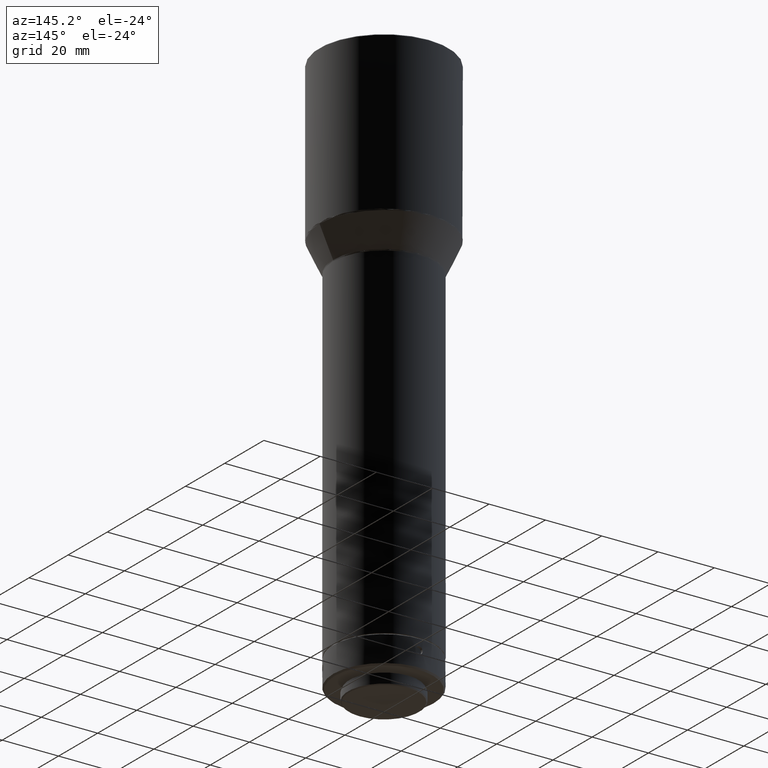
[diagram: clean part render]
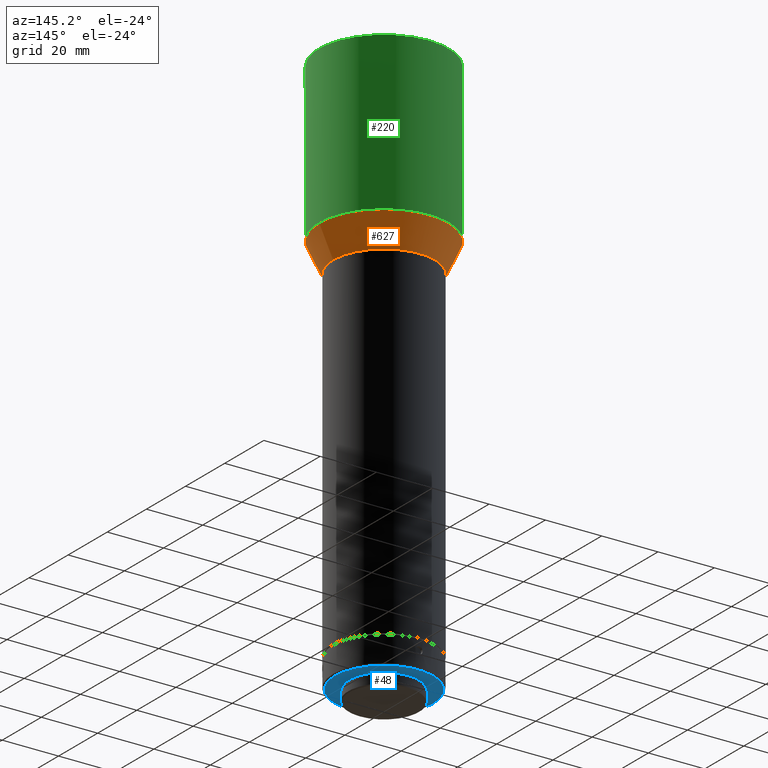
[diagram: same view with three faces highlighted in distinct colors, each labeled with its STEP entity id]
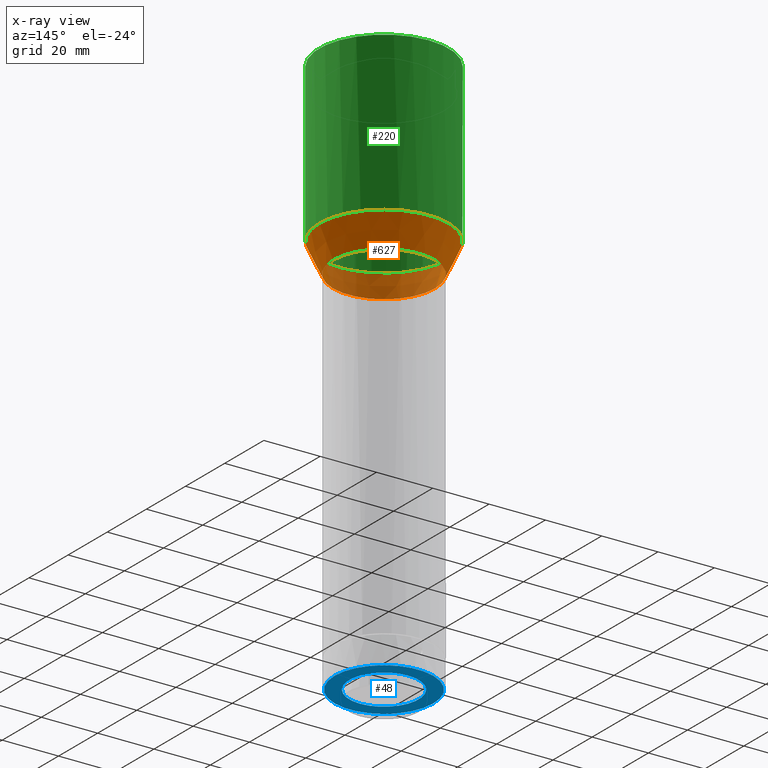
[diagram: x-ray of the same camera — body ghosted, the three highlighted faces saturated]
A machine part, auxiliary view with three faces highlighted in distinct colors.
The next image is the same camera in x-ray (body ghosted, the three faces saturated) — at least one of them is partly hidden behind the body in this view.
Their STEP definitions:

[orange] entity #627 — the highlighted conical surface has half-angle 25 deg.
#63 = CIRCLE ( 'NONE', #765, 18.09369221296335795 ) ;
#74 = ORIENTED_EDGE ( 'NONE', *, *, #787, .T. ) ;
#93 = FACE_OUTER_BOUND ( 'NONE', #377, .T. ) ;
#96 = DIRECTION ( 'NONE',  ( 3.670542878311740413E-31, -2.423400215667809268E-15, 1.000000000000000000 ) ) ;
#101 = CARTESIAN_POINT ( 'NONE',  ( 18.09369221296336505, -1.718642054122675722E-15, -633.5216110034501753 ) ) ;
#128 = CIRCLE ( 'NONE', #831, 22.90630778703664205 ) ;
#155 = DIRECTION ( 'NONE',  ( -4.314083075427408311E-32, -2.379644031336606723E-17, -1.000000000000000000 ) ) ;
#163 = DIRECTION ( 'NONE',  ( 4.314083075427408311E-32, 2.379644031336606723E-17, 1.000000000000000000 ) ) ;
#165 = DIRECTION ( 'NONE',  ( 0.000000000000000000, -1.000000000000000000, -4.846800431335618536E-15 ) ) ;
#167 = VERTEX_POINT ( 'NONE', #435 ) ;
#277 = ORIENTED_EDGE ( 'NONE', *, *, #849, .T. ) ;
#298 = FACE_BOUND ( 'NONE', #512, .T. ) ;
#348 = CARTESIAN_POINT ( 'NONE',  ( 8.018944991708157582E-15, -1.718642054122675525E-15, -633.5216110034501753 ) ) ;
#363 = CARTESIAN_POINT ( 'NONE',  ( 8.018944991708157582E-15, -1.473046432312095103E-15, -623.2009235990976777 ) ) ;
#377 = EDGE_LOOP ( 'NONE', ( #277 ) ) ;
#430 = DIRECTION ( 'NONE',  ( 1.000000000000000000, -1.064420639921900070E-32, 0.000000000000000000 ) ) ;
#435 = CARTESIAN_POINT ( 'NONE',  ( 22.90630778703664916, -1.473046432312093328E-15, -623.2009235990976777 ) ) ;
#512 = EDGE_LOOP ( 'NONE', ( #74 ) ) ;
#556 = CARTESIAN_POINT ( 'NONE',  ( 8.673617379884035472E-15, -1.473046432312096286E-15, -623.2009235990976777 ) ) ;
#627 = ADVANCED_FACE ( 'NONE', ( #298, #93 ), #778, .T. ) ;
#761 = VERTEX_POINT ( 'NONE', #101 ) ;
#765 = AXIS2_PLACEMENT_3D ( 'NONE', #348, #163, #430 ) ;
#778 = CONICAL_SURFACE ( 'NONE', #835, 22.90630778703664561, 0.4363323129985768323 ) ;
#787 = EDGE_CURVE ( 'NONE', #761, #761, #63, .T. ) ;
#811 = DIRECTION ( 'NONE',  ( 1.000000000000000000, 7.567072642451172280E-32, 0.000000000000000000 ) ) ;
#831 = AXIS2_PLACEMENT_3D ( 'NONE', #363, #155, #811 ) ;
#835 = AXIS2_PLACEMENT_3D ( 'NONE', #556, #96, #165 ) ;
#849 = EDGE_CURVE ( 'NONE', #167, #167, #128, .T. ) ;

[blue] entity #48 — the highlighted planar face has unit normal (0, 0, 1).
#27 = DIRECTION ( 'NONE',  ( 0.000000000000000000, -0.000000000000000000, 1.000000000000000000 ) ) ;
#48 = ADVANCED_FACE ( 'NONE', ( #612, #751 ), #809, .F. ) ;
#90 = ORIENTED_EDGE ( 'NONE', *, *, #296, .F. ) ;
#104 = CARTESIAN_POINT ( 'NONE',  ( -2.172256618429164292E-15, -12.30000000000001847, -766.1518460000002051 ) ) ;
#180 = EDGE_LOOP ( 'NONE', ( #648 ) ) ;
#204 = CARTESIAN_POINT ( 'NONE',  ( -4.652887180679852235E-16, 12.30000000000001137, -766.1518460000002051 ) ) ;
#216 = DIRECTION ( 'NONE',  ( 4.059358550877070560E-33, 1.417682489495849437E-17, 1.000000000000000000 ) ) ;
#296 = EDGE_CURVE ( 'NONE', #830, #830, #815, .T. ) ;
#324 = AXIS2_PLACEMENT_3D ( 'NONE', #204, #216, #745 ) ;
#354 = DIRECTION ( 'NONE',  ( 1.000000000000000000, 0.000000000000000000, 0.000000000000000000 ) ) ;
#496 = DIRECTION ( 'NONE',  ( 3.247486840701663975E-33, -1.417682489495849745E-17, -1.000000000000000000 ) ) ;
#534 = EDGE_LOOP ( 'NONE', ( #90 ) ) ;
#566 = VERTEX_POINT ( 'NONE', #571 ) ;
#571 = CARTESIAN_POINT ( 'NONE',  ( 17.49999999999997513, -2.114854442793124254E-14, -766.1518460000002051 ) ) ;
#612 = FACE_BOUND ( 'NONE', #534, .T. ) ;
#648 = ORIENTED_EDGE ( 'NONE', *, *, #754, .F. ) ;
#689 = CARTESIAN_POINT ( 'NONE',  ( -1.734723475976807094E-15, -2.114854442793124254E-14, -766.1518460000002051 ) ) ;
#728 = AXIS2_PLACEMENT_3D ( 'NONE', #819, #496, #756 ) ;
#745 = DIRECTION ( 'NONE',  ( 0.000000000000000000, -1.000000000000000000, 1.417682489495849437E-17 ) ) ;
#751 = FACE_OUTER_BOUND ( 'NONE', #180, .T. ) ;
#754 = EDGE_CURVE ( 'NONE', #566, #566, #816, .T. ) ;
#756 = DIRECTION ( 'NONE',  ( 0.000000000000000000, -1.000000000000000000, 0.000000000000000000 ) ) ;
#768 = AXIS2_PLACEMENT_3D ( 'NONE', #689, #27, #354 ) ;
#809 = PLANE ( 'NONE',  #324 ) ;
#815 = CIRCLE ( 'NONE', #728, 12.29999999999999893 ) ;
#816 = CIRCLE ( 'NONE', #768, 17.49999999999997513 ) ;
#819 = CARTESIAN_POINT ( 'NONE',  ( -2.172256618429164292E-15, -2.115563284037871207E-14, -766.1518460000002051 ) ) ;
#830 = VERTEX_POINT ( 'NONE', #104 ) ;

[green] entity #220 — the highlighted cylindrical surface (bore or boss wall) has radius 23 mm, axis along (0, 0, 1).
#1 = ORIENTED_EDGE ( 'NONE', *, *, #345, .F. ) ;
#51 = CARTESIAN_POINT ( 'NONE',  ( 8.018944991708160738E-15, -1.356645083301169713E-16, -567.0000000000001137 ) ) ;
#65 = DIRECTION ( 'NONE',  ( 4.314083075427408311E-32, 2.379644031336606723E-17, 1.000000000000000000 ) ) ;
#108 = CARTESIAN_POINT ( 'NONE',  ( 8.018944991708160738E-15, -23.00000000000000000, -567.2999999999999545 ) ) ;
#113 = VERTEX_POINT ( 'NONE', #108 ) ;
#159 = DIRECTION ( 'NONE',  ( -4.314083075427408311E-32, -2.379644031336606723E-17, -1.000000000000000000 ) ) ;
#177 = DIRECTION ( 'NONE',  ( -4.314083075427408311E-32, -2.379644031336606723E-17, -1.000000000000000000 ) ) ;
#205 = FACE_OUTER_BOUND ( 'NONE', #385, .T. ) ;
#212 = CARTESIAN_POINT ( 'NONE',  ( 8.018944991708160738E-15, -1.428034404241233695E-16, -567.2999999999999545 ) ) ;
#220 = ADVANCED_FACE ( 'NONE', ( #205, #645 ), #848, .T. ) ;
#292 = AXIS2_PLACEMENT_3D ( 'NONE', #212, #159, #629 ) ;
#307 = CARTESIAN_POINT ( 'NONE',  ( 8.018944991708151271E-15, -1.462989622071248185E-15, -622.7783053373569828 ) ) ;
#345 = EDGE_CURVE ( 'NONE', #370, #370, #367, .T. ) ;
#367 = CIRCLE ( 'NONE', #431, 23.00000000000000000 ) ;
#370 = VERTEX_POINT ( 'NONE', #641 ) ;
#385 = EDGE_LOOP ( 'NONE', ( #1 ) ) ;
#431 = AXIS2_PLACEMENT_3D ( 'NONE', #307, #177, #503 ) ;
#492 = ORIENTED_EDGE ( 'NONE', *, *, #682, .T. ) ;
#503 = DIRECTION ( 'NONE',  ( -1.000000000000000000, 0.000000000000000000, 0.000000000000000000 ) ) ;
#607 = AXIS2_PLACEMENT_3D ( 'NONE', #51, #65, #775 ) ;
#629 = DIRECTION ( 'NONE',  ( 0.000000000000000000, -1.000000000000000000, 0.000000000000000000 ) ) ;
#632 = CIRCLE ( 'NONE', #292, 23.00000000000000000 ) ;
#641 = CARTESIAN_POINT ( 'NONE',  ( -22.99999999999999289, -1.462989622071248185E-15, -622.7783053373569828 ) ) ;
#645 = FACE_OUTER_BOUND ( 'NONE', #676, .T. ) ;
#676 = EDGE_LOOP ( 'NONE', ( #492 ) ) ;
#682 = EDGE_CURVE ( 'NONE', #113, #113, #632, .T. ) ;
#775 = DIRECTION ( 'NONE',  ( 0.000000000000000000, -1.000000000000000000, 0.000000000000000000 ) ) ;
#848 = CYLINDRICAL_SURFACE ( 'NONE', #607, 23.00000000000000000 ) ;